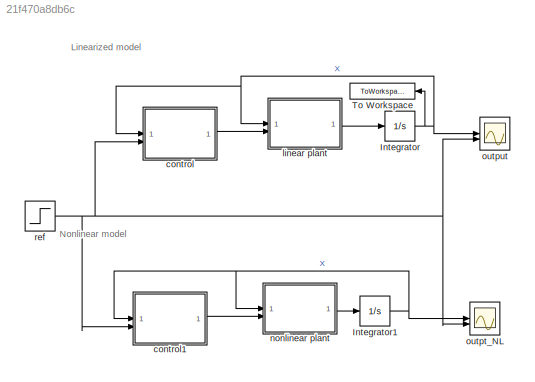
MODEL slx_21f470a8db6c
KIND model
CONFIG AbsTol = auto
CONFIG EnableMultiTasking = off
CONFIG FixedStep = auto
CONFIG MaxStep = auto
CONFIG MinStep = auto
CONFIG RelTol = 1e-3
CONFIG SampleTimeConstraint = Unconstrained
CONFIG SolverName = VariableStepAuto
CONFIG StartTime = 0.0
CONFIG StopFcn = x = out.X;\nplot3(x(1,:), x(2,:), x(3,:));\ngrid on;
CONFIG StopTime = 100.0
BLOCK [Integrator] Integrator
  InitialCondition = 0.0*[1 1 1 1 1 1 1 1 1 1 1 1]'
BLOCK [Integrator] Integrator1
  InitialCondition = 0.0*[1 1 1 1 1 1 1 1 1 1 1 1]'
BLOCK [ToWorkspace] To Workspace
  FixptAsFi = on
  MaxDataPoints = inf
  SampleTime = -1
  VariableName = X
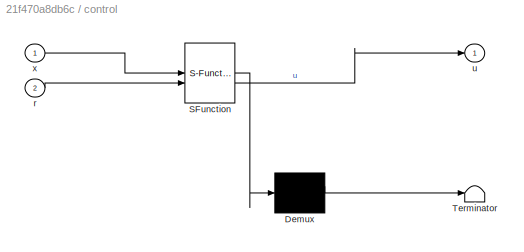
BLOCK [SubSystem] control
  ErrorFcn = Stateflow.Translate.translate
  PermitHierarchicalResolution = ExplicitOnly
  SFBlockType = MATLAB Function
  TreatAsAtomicUnit = on
BLOCK [Demux] control/ Demux 
  Outputs = 1
BLOCK [S-Function] control/ SFunction 
  EnableBusSupport = on
  FunctionName = sf_sfun
  Parameters = K
  PortCounts = [2 2]
  SFcnIsStateOwnerBlock = off
  SFunctionDeploymentMode = off
  Tag = Stateflow S-Function 1
BLOCK [Terminator] control/ Terminator 
BLOCK [Inport] control/r
  Port = 2
BLOCK [Outport] control/u
BLOCK [Inport] control/x
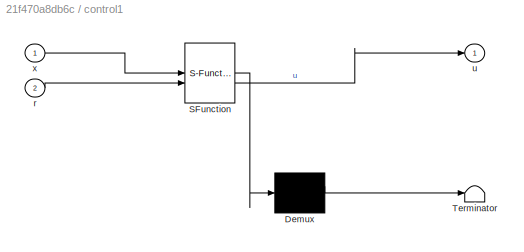
BLOCK [SubSystem] control1
  ErrorFcn = Stateflow.Translate.translate
  PermitHierarchicalResolution = ExplicitOnly
  SFBlockType = MATLAB Function
  TreatAsAtomicUnit = on
BLOCK [Demux] control1/ Demux 
  Outputs = 1
BLOCK [S-Function] control1/ SFunction 
  EnableBusSupport = on
  FunctionName = sf_sfun
  Parameters = K
  PortCounts = [2 2]
  SFcnIsStateOwnerBlock = off
  SFunctionDeploymentMode = off
  Tag = Stateflow S-Function 4
BLOCK [Terminator] control1/ Terminator 
BLOCK [Inport] control1/r
  Port = 2
BLOCK [Outport] control1/u
BLOCK [Inport] control1/x
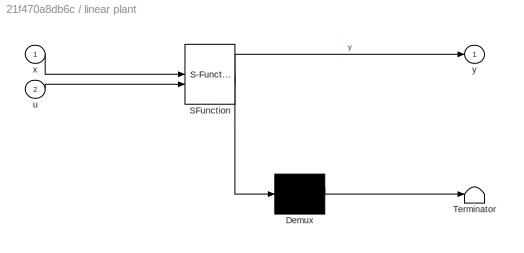
BLOCK [SubSystem] linear plant
  ErrorFcn = Stateflow.Translate.translate
  PermitHierarchicalResolution = ExplicitOnly
  SFBlockType = MATLAB Function
  TreatAsAtomicUnit = on
BLOCK [Demux] linear plant/ Demux 
  Outputs = 1
BLOCK [S-Function] linear plant/ SFunction 
  EnableBusSupport = on
  FunctionName = sf_sfun
  PortCounts = [2 2]
  SFcnIsStateOwnerBlock = off
  SFunctionDeploymentMode = off
  Tag = Stateflow S-Function 2
BLOCK [Terminator] linear plant/ Terminator 
BLOCK [Inport] linear plant/u
  Port = 2
BLOCK [Inport] linear plant/x
BLOCK [Outport] linear plant/y
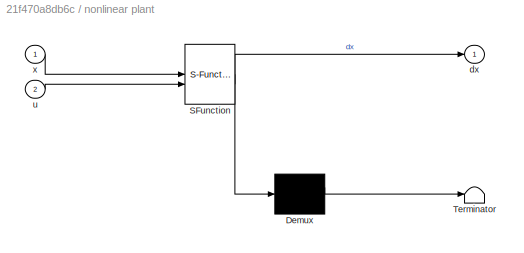
BLOCK [SubSystem] nonlinear plant
  ErrorFcn = Stateflow.Translate.translate
  PermitHierarchicalResolution = ExplicitOnly
  SFBlockType = MATLAB Function
  TreatAsAtomicUnit = on
BLOCK [Demux] nonlinear plant/ Demux 
  Outputs = 1
BLOCK [S-Function] nonlinear plant/ SFunction 
  EnableBusSupport = on
  FunctionName = sf_sfun
  PortCounts = [2 2]
  SFcnIsStateOwnerBlock = off
  SFunctionDeploymentMode = off
  Tag = Stateflow S-Function 3
BLOCK [Terminator] nonlinear plant/ Terminator 
BLOCK [Outport] nonlinear plant/dx
BLOCK [Inport] nonlinear plant/u
  Port = 2
BLOCK [Inport] nonlinear plant/x
BLOCK [Scope] outpt_NL
  Floating = off
  NumInputPorts = 2
  ScopeSpecificationString = Simulink.scopes.TimeScopeBlockCfg('CurrentConfiguration', extmgr.ConfigurationSet(extmgr.Configuration('Core','General UI',true,'FigureColor',[1 1 1]),extmgr.Configuration('Core','Source UI',true),extmgr.Configuration('Sources','WiredSimulink',true,'DataLoggingVariableName','ScopeData1'),extmgr.Configuration('Visuals','Time Domain',true,'SerializedDisplays',{struct('MinYLimReal','-3.40756','MaxYLi...<+3525ch>
BLOCK [Scope] output
  Floating = off
  NumInputPorts = 2
  ScopeSpecificationString = Simulink.scopes.TimeScopeBlockCfg('CurrentConfiguration', extmgr.ConfigurationSet(extmgr.Configuration('Core','General UI',true,'FigureColor',[1 1 1]),extmgr.Configuration('Core','Source UI',true),extmgr.Configuration('Sources','WiredSimulink',true,'DataLoggingVariableName','ScopeData2'),extmgr.Configuration('Visuals','Time Domain',true,'SerializedDisplays',{struct('MinYLimReal','-3.50868','MaxYLi...<+3525ch>
BLOCK [Step] ref
  After = [2, 0, 0, 1]'
  SampleTime = 0
ANNOTATION (root): Linearized model
ANNOTATION (root): Nonlinear model
NET Integrator1:1 -> control1:1, nonlinear plant:1, outpt_NL:1
NET Integrator:1 -> To Workspace:1, control:1, linear plant:1, output:1
LINE control1:1 -> nonlinear plant:2
LINE control:1 -> linear plant:2
LINE linear plant:1 -> Integrator:1
LINE nonlinear plant:1 -> Integrator1:1
NET ref:1 -> control1:2, control:2, outpt_NL:2, output:2
note: NET lines group one-source signal fan-out (src -> all destinations, sorted); 1:1 wires keep LINE
CHART linear plant states=1 transitions=1
  STATE_LABEL 'eML_blk_kernel()'
  STATE_LABEL 'SCRIPT:\nfunction y = state(x, u)\n% Define the state derivatives\n% x(1) = x7, x(2) = x8, ..., x(6) = x12\n\n% Constants\nm = 1.62;\nIzz = 0.026;\nIyy = 0.01667;\nIxx = 0.0184;\ng = 9.81;\n\n% Inputs\nu1 = u(1);\nu2 = u(2);\nu3 = u(3);\nu4 = u(4);\n\n% State variables\nphi = x(4);  % Roll angle\ntheta = x(5); % Pitch angle\npsi = x(6);   % Yaw angle\n\n% Dynamics equations\ndx = zeros(12, 1);\ndx(1) = x(7);\ndx(2) = x(8);...<+260ch>'
CHART nonlinear plant states=1 transitions=1
  STATE_LABEL 'eML_blk_kernel()'
  STATE_LABEL 'SCRIPT:\nfunction dx = fcn(x,u)\ng  = 9.81;\nm = 1.62; \nIxx = 0.01184;\nIyy = 0.01667;\nIzz = 0.026; \n\ndx = zeros(12,1);\ndx(1) = x(7);\ndx(2) = x(8);\ndx(3) = x(9);\ndx(4) = x(10);\ndx(5) = x(11);\ndx(6) = x(12);\ndx(7) = (cos(x(4))*cos(x(6))*sin(x(5)) + sin(x(4)*sin(x(5)))*(u(1)/m));\ndx(8) = (-cos(x(6))*sin(x(4)) + cos(x(4))*sin(x(6))*sin(x(5)))*(u(1)/m);\ndx(9) = -g + cos(x(4))*cos(x(5))*(u(1)/m);\ndx(10) = ...<+136ch>'
CHART control1 states=1 transitions=1
  STATE_LABEL 'eML_blk_kernel()'
  STATE_LABEL 'SCRIPT:\nfunction u = fcn(x, r, K)\n% r - reference input for z, phi, and theta\nm = 1.62;\ng = 9.81;\nu = zeros(4,1);\nu(1) = (K(1)*(r(1)-x(3)) - K(2)*x(9) + g)*m;\nu(2) = K(1)*(r(2)-x(4)) - K(2)*x(10);\nu(3) = K(1)*(r(3)-x(5)) - K(2)*x(11);\nu(4) = K(1)*(r(4)-x(6)) - K(2)*x(12);\n'
CHART control states=1 transitions=1
  STATE_LABEL 'eML_blk_kernel()'
  STATE_LABEL 'SCRIPT:\nfunction u = fcn(x, r, K)\n% r - reference input for z, phi, and theta\nk1 = 5;\nk2 = 4;\nm = 1.62;\ng = 9.81;\nu = zeros(4,1);\n% u(1) = 1;\nu(1) = (K(1)*(r(1)-x(3)) - K(2)*x(9) + g)*m;\nu(2) = K(1)*(r(2)-x(4)) - K(2)*x(10);\nu(3) = K(1)*(r(3)-x(5)) - K(2)*x(11);\nu(4) = K(1)*(r(4)-x(6)) - K(2)*x(12);\n'
CHART  states=0 transitions=0
CHART  states=0 transitions=0
CHART  states=0 transitions=0
CHART  states=0 transitions=0
